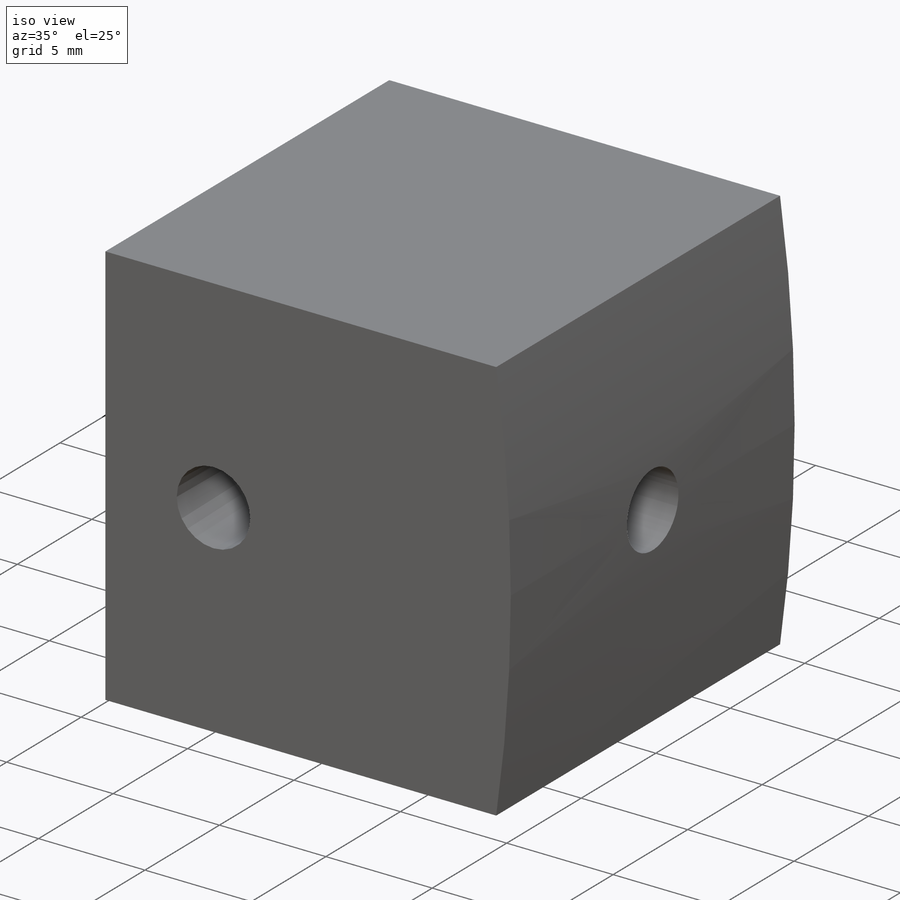
[diagram: iso view]
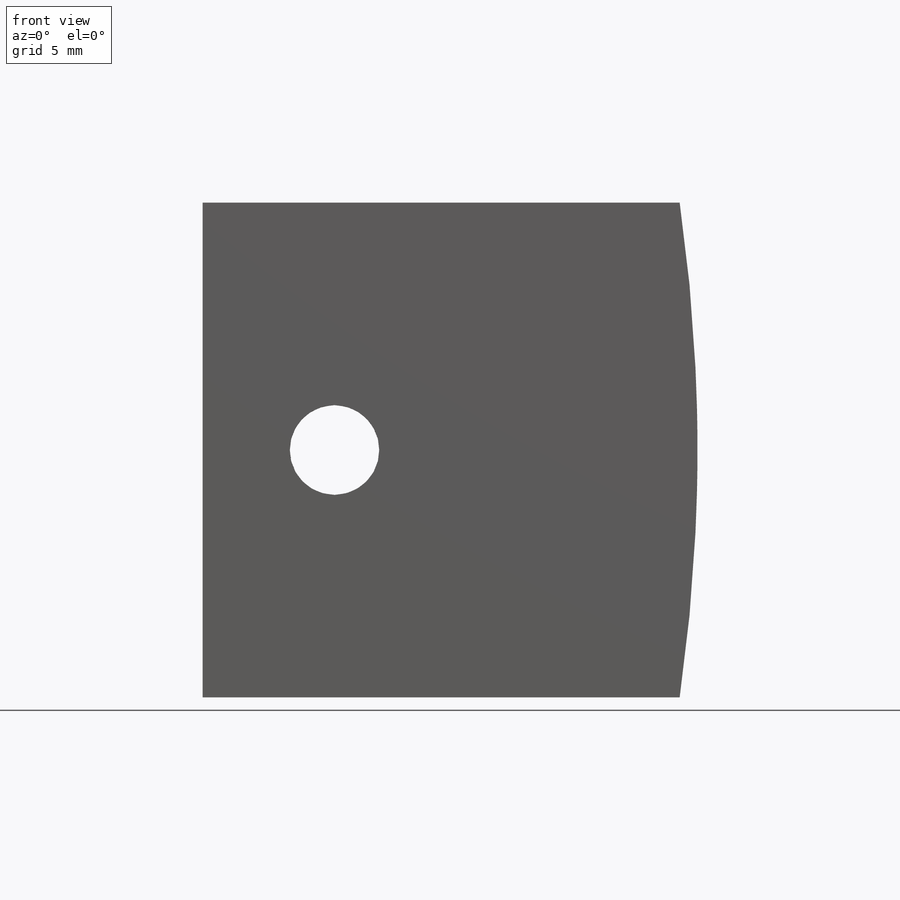
[diagram: front view]
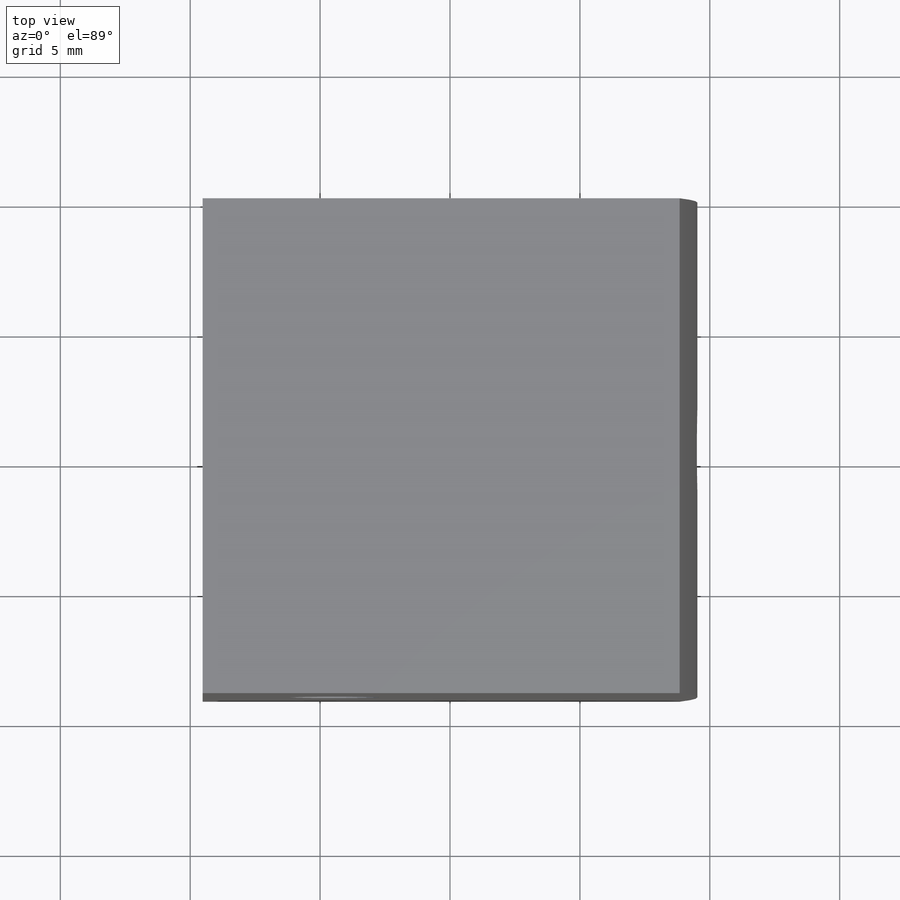
[diagram: top view]
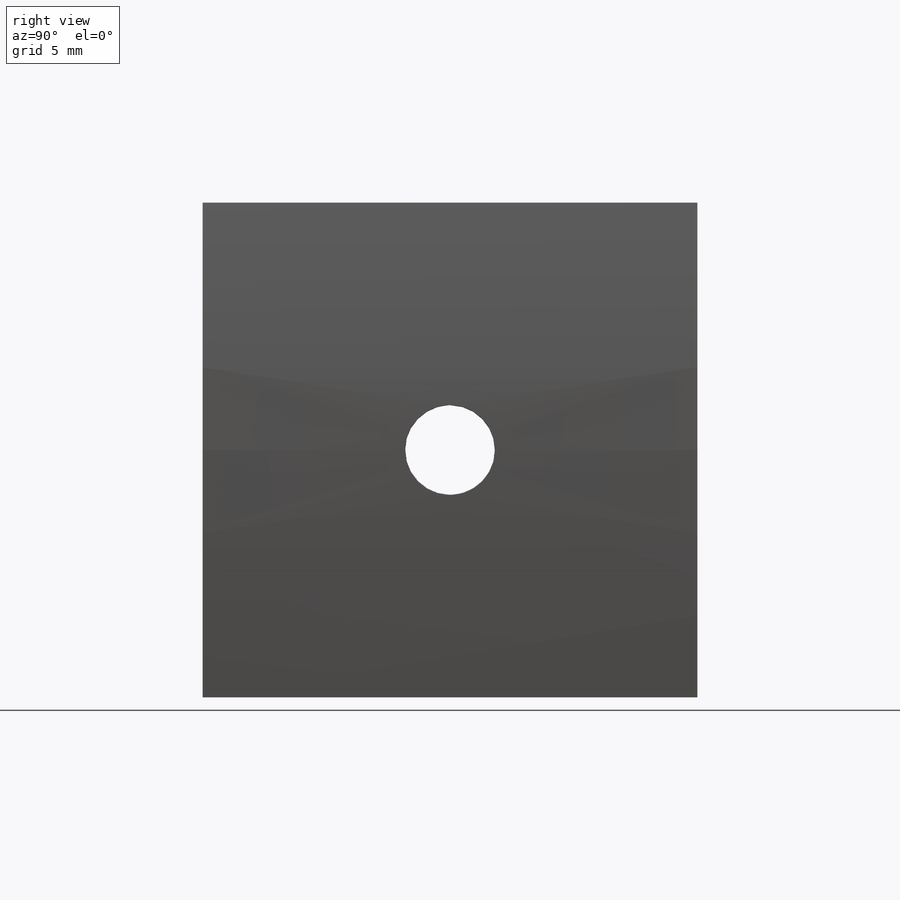
[diagram: right view]
SOLIDWORKS PART (.sldprt)
format: sldprt  version: not decoded by parser v0  size: 194,560 bytes
history: native  units: mm
features: sketch x8, hole x2, material x1, extrude x1, cut_extrude x1 (+16 scaffold rows collapsed)
feature tree (29):
  scaffold x16  (default folders/planes/origin — collapsed)
  material  "Material <not specified>"
  sketch  "Sketch1"  dims[D1=19.05mm]
  extrude  "Extrude1"  Depth=19.05mm
  sketch  "Sketch3"
  hole  "#29 (0.136) Diameter Hole1"  Diameter=3.4544mm Depth=19.05mm
  sketch  "Sketch6"
  sketch  "Sketch5"  dims[hole-wizard template sketch: 60 standard entries collapsed; hole parameters kept: c18.Thru Hole Depth=19.05mm]
  sketch  "Sketch7"  dims[D1=66.675mm]
  cut_extrude  "Extrude2"  [1 undecoded]
  sketch  "Sketch12"  dims[D1=5.08mm]
  hole  "#29 (0.136) Diameter Hole3"  Diameter=3.4544mm Depth=19.05mm
  sketch  "3DSketch4"
  sketch  "Sketch14"  dims[hole-wizard template sketch: 60 standard entries collapsed; hole parameters kept: c18.Thru Hole Depth=19.05mm]
decode coverage: 8 of 12 modeling features carry decoded parameters
note: ~ marks probable driven/reference dimensions
note: 1 parameter value undecoded
note: suppression state not decoded; provenance and decode notes live in map.json
